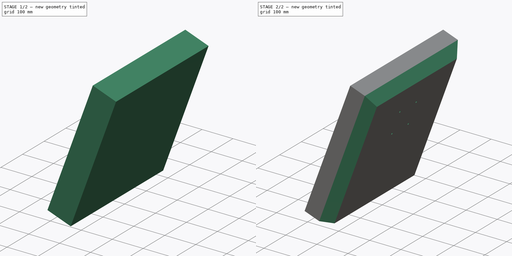
[diagram: build sequence overview — one tinted view per stage of 2, left to right]
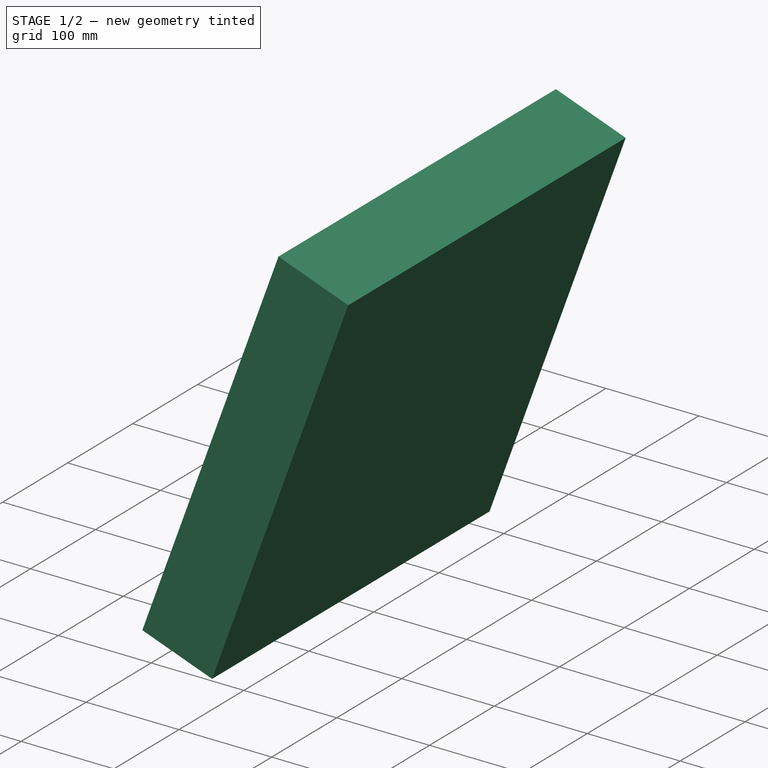
[diagram: stage 1 of 2 — iso view after this stage's code; geometry added in this stage tinted green]
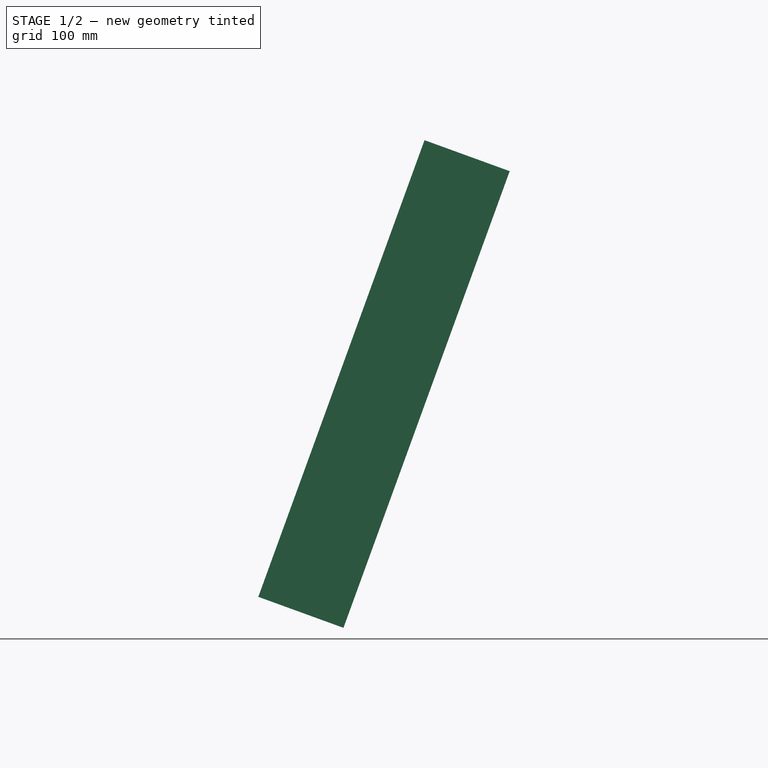
[diagram: stage 1 of 2 — front view after this stage's code; geometry added in this stage tinted green]
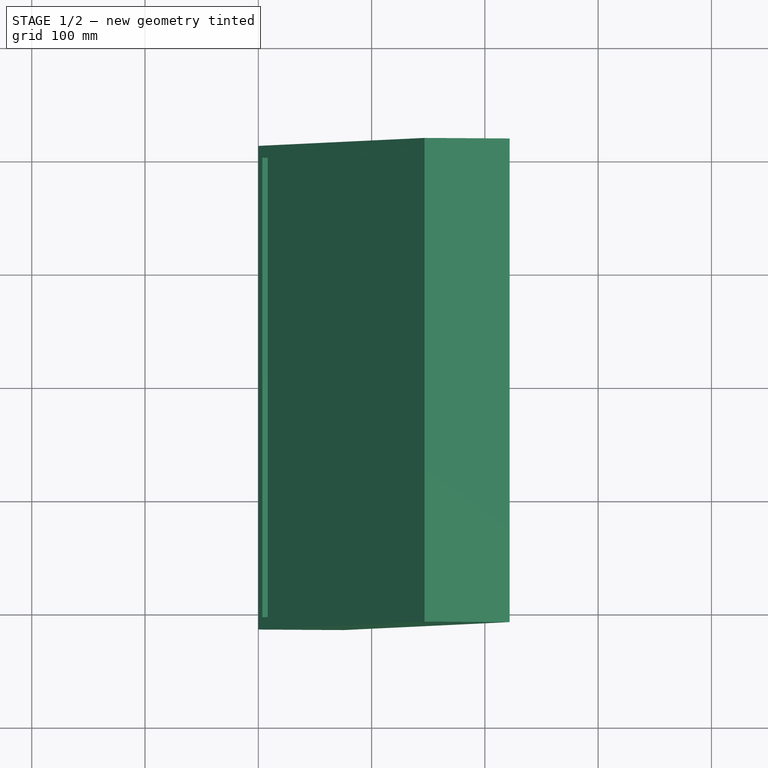
[diagram: stage 1 of 2 — top view after this stage's code; geometry added in this stage tinted green]
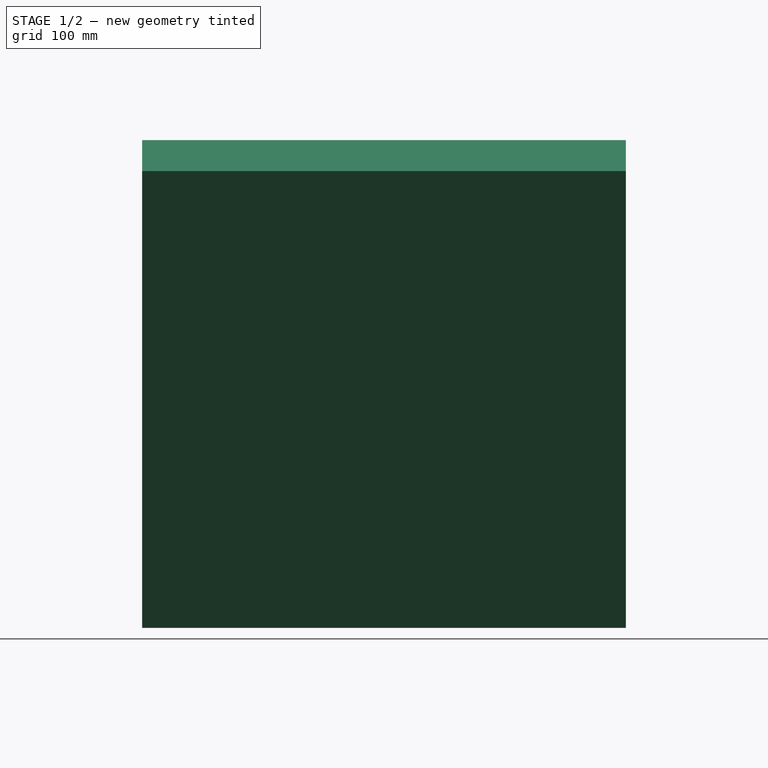
[diagram: stage 1 of 2 — right view after this stage's code; geometry added in this stage tinted green]
FCSTD DOCUMENT  (FreeCAD 0.19R14555 (Git shallow))
Label: 1100_Monitor_Acer AL1913W_427x196x429
License: All rights reserved
LicenseURL: http://en.wikipedia.org/wiki/All_rights_reserved
objects: Sketcher::SketchObject×3, PartDesign::Pad×1, PartDesign::Pocket×1, Spreadsheet::Sheet×1, PartDesign::Hole×1, PartDesign::Chamfer×1, PartDesign::Body×1, App::Part×1
note: 12 computed .brp shape members not serialized (recipe doc carries the construction recipe); baked Part::Feature solids carry a one-line shape summary decoded from their .brp

FEATURE [Sketcher::SketchObject] Sketch002
  FullyConstrained = true
  MapMode = 5
  Placement = pos=(0,0,0) rot=(0,0.707107,0.707107;3.14159rad)
  Support = -> [XZ_Plane001]
  expr: Constraints[7] = <<Monitor>>.D_monitor
  expr: Constraints[8] = <<Monitor>>.H_monitor
  sketch-geometry (4):
    g0: LineSegment StartX=-146.727 StartY=403.128 StartZ=0 EndX=0 EndY=0 EndZ=0
    g1: LineSegment StartX=0 StartY=0 StartZ=0 EndX=-75.1754 EndY=-27.3616 EndZ=0
    g2: LineSegment StartX=-75.1754 StartY=-27.3616 StartZ=0 EndX=-221.902 EndY=375.767 EndZ=0
    g3: LineSegment StartX=-221.902 StartY=375.767 StartZ=0 EndX=-146.727 EndY=403.128 EndZ=0
  constraints (11):
    c: Coincident(g2,g1)
    c: Coincident(g3,g2)
    c: Coincident(g3,g0)
    c: Perpendicular(g1,g0)
    c: Perpendicular(g2,g1)
    c: Perpendicular(g2,g3)
    c: Coincident(g1,g0)
    c: Distance(g1) = 80
    c: Distance(g2) = 429
    c: Coincident(g0,g-1)
    c: Angle(g-2,g0) = 0.349066
FEATURE [PartDesign::Pad] Pad002
  AllowMultiFace = false
  Direction = (1,1,1)
  Length = 213.5
  Length2 = 213.5
  Placement = pos=(0,0,0) rot=(1,0,0;1.5708rad)
  Profile = -> Sketch002
  Type = 4
  expr: Length = <<Monitor>>.W_monitor / 2
  expr: Length2 = <<Monitor>>.W_monitor / 2
FEATURE [Sketcher::SketchObject] Sketch
  ExternalGeometry = -> [Pad002]
  FullyConstrained = true
  MapMode = 5
  Placement = pos=(0,0,0) rot=(-0.573576,0,0.819152;3.14159rad)
  Support = -> [Pad002]
  sketch-geometry (8):
    g0: LineSegment StartX=-214.5 StartY=4.9e-15 StartZ=0 EndX=-10.6314 EndY=-202.918 EndZ=0
    g1: LineSegment StartX=-418.369 StartY=202.918 StartZ=0 EndX=-10.6314 EndY=202.918 EndZ=0
    g2: LineSegment StartX=-10.6314 StartY=202.918 StartZ=0 EndX=-10.6314 EndY=-202.918 EndZ=0
    g3: LineSegment StartX=-10.6314 StartY=-202.918 StartZ=0 EndX=-418.369 EndY=-202.918 EndZ=0
    g4: LineSegment StartX=-418.369 StartY=-202.918 StartZ=0 EndX=-418.369 EndY=202.918 EndZ=0
    g5: LineSegment StartX=-418.369 StartY=202.918 StartZ=0 EndX=-214.5 EndY=0 EndZ=0
    g6: LineSegment StartX=-418.369 StartY=202.918 StartZ=0 EndX=-429 EndY=213.5 EndZ=0
    g7: LineSegment StartX=-10.6314 StartY=-202.918 StartZ=0 EndX=0 EndY=-213.5 EndZ=0
  constraints (21):
    c: Coincident(g1,g2)
    c: Coincident(g2,g3)
    c: Coincident(g3,g4)
    c: Horizontal(g1)
    c: Horizontal(g3)
    c: Vertical(g2)
    c: Vertical(g4)
    c: Coincident(g2,g0)
    c: Coincident(g4,g1)
    c: Coincident(g5,g1)
    c: Coincident(g5,g0)
    c: Equal(g0,g5)
    c: Parallel(g5,g0)
    c: Coincident(g6,g1)
    c: Coincident(g6,g-6)
    c: Coincident(g7,g2)
    c: Coincident(g7,g-5)
    c: Parallel(g5,g6)
    c: Parallel(g7,g0)
    c: Equal(g6,g7)
    c: Distance(g6) = 15
FEATURE [PartDesign::Pocket] Pocket
  AllowMultiFace = false
  BaseFeature = -> Pad002
  Length = 5
  Length2 = 100
  Placement = pos=(0,0,0) rot=(1,0,0;1.5708rad)
  Profile = -> Sketch
  Type = 0
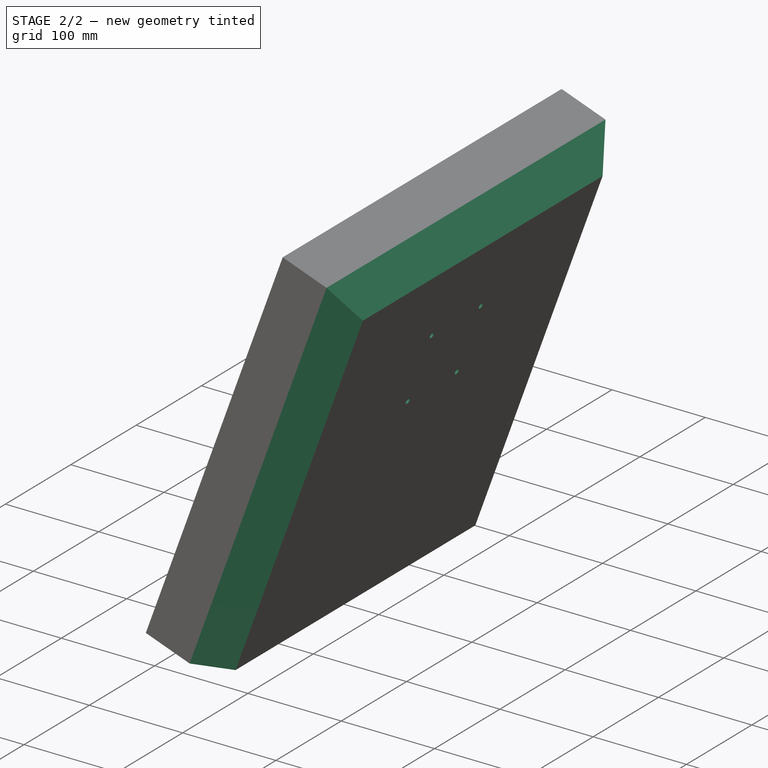
[diagram: stage 2 of 2 — iso view after this stage's code; geometry added in this stage tinted green]
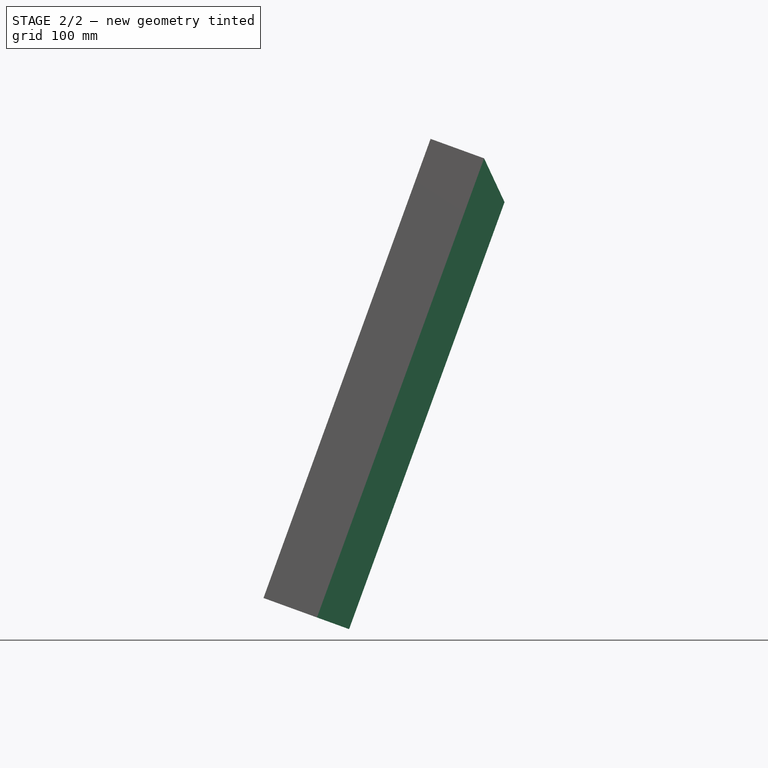
[diagram: stage 2 of 2 — front view after this stage's code; geometry added in this stage tinted green]
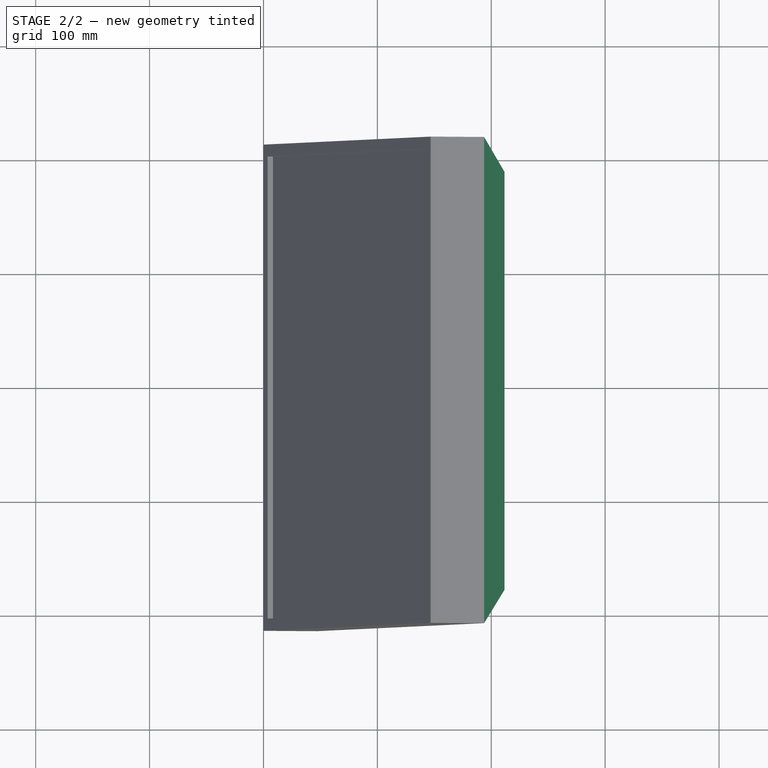
[diagram: stage 2 of 2 — top view after this stage's code; geometry added in this stage tinted green]
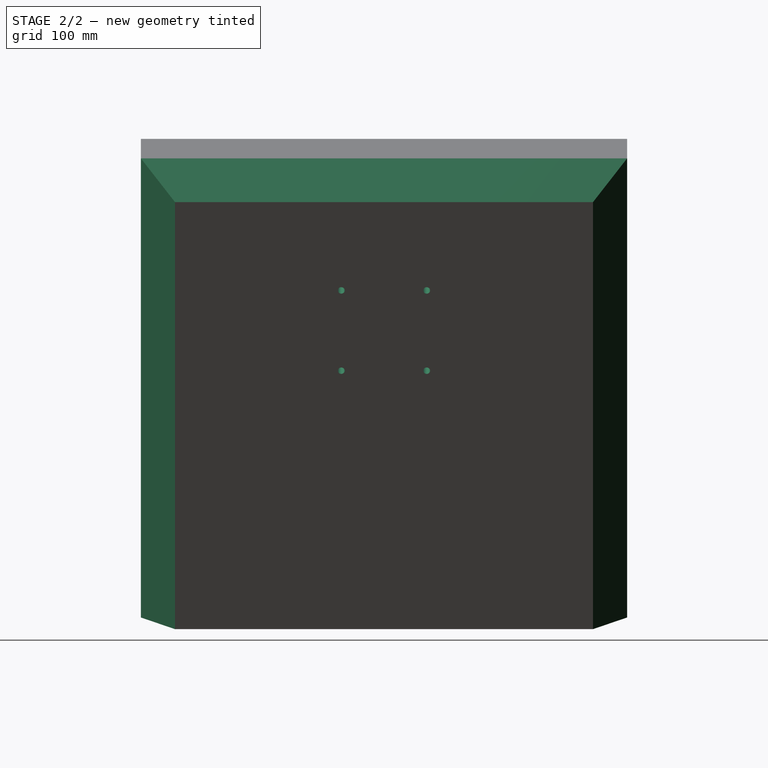
[diagram: stage 2 of 2 — right view after this stage's code; geometry added in this stage tinted green]
FEATURE [Spreadsheet::Sheet] Spreadsheet  label="Monitor"
  cells = B3=Monitor dimensions; E3=427 mm x 196mm x 429m; B4=Width; C4(W_monitor)=427; D4=W_monitor; B5=Height; C5(H_monitor)=429; D5=H_monitor; B6=Depth; C6(D_monitor)=80; D6=D_monitor; B8=Monitor Mounting; B9=Width; C9(W_mount)=75; D9=W_mount; B10=Height; C10(H_mount)=75; D10=H_mount; B11=HeightMounting; C11(H0_mount)=100; D11=H0_mount; B12=ScrewSize; C12(D_screw)=8; D12=D_screw
FEATURE [Sketcher::SketchObject] Sketch003
  ExternalGeometry = -> [Pocket]
  FullyConstrained = false
  MapMode = 5
  Placement = pos=(75.1754,2.8312e-12,-27.3616) rot=(0.819152,0,0.573576;3.14159rad)
  Support = -> [Pocket]
  sketch-geometry (12):
    g0: LineSegment StartX=429 StartY=213.5 StartZ=0 EndX=429 EndY=0 EndZ=0
    g1: LineSegment StartX=429 StartY=0 StartZ=0 EndX=429 EndY=-213.5 EndZ=0
    g2: LineSegment StartX=429 StartY=0 StartZ=0 EndX=279 EndY=-4.67669e-10 EndZ=0
    g3: LineSegment StartX=279 StartY=-4.67669e-10 StartZ=0 EndX=316.5 EndY=37.5 EndZ=0
    g4: LineSegment StartX=279 StartY=-4.67669e-10 StartZ=0 EndX=241.5 EndY=37.5 EndZ=0
    g5: LineSegment StartX=279 StartY=-4.67669e-10 StartZ=0 EndX=241.5 EndY=-37.5 EndZ=0
    g6: LineSegment StartX=279 StartY=-4.67669e-10 StartZ=0 EndX=316.5 EndY=-37.5 EndZ=0
    g7: Circle CenterX=241.5 CenterY=37.5 CenterZ=0 NormalX=0 NormalY=0 NormalZ=1 AngleXU=0 Radius=2
    g8: Circle CenterX=241.5 CenterY=-37.5 CenterZ=0 NormalX=0 NormalY=0 NormalZ=1 AngleXU=0 Radius=1.28365
    g9: Circle CenterX=316.5 CenterY=-37.5 CenterZ=0 NormalX=0 NormalY=0 NormalZ=1 AngleXU=0 Radius=2
    g10: Circle CenterX=316.5 CenterY=37.5 CenterZ=0 NormalX=0 NormalY=0 NormalZ=1 AngleXU=0 Radius=2
    g11: Circle CenterX=241.5 CenterY=-37.5 CenterZ=0 NormalX=0 NormalY=0 NormalZ=1 AngleXU=0 Radius=2
  constraints (29):
    c: Coincident(g-3,g1)
    c: Equal(g1,g0)
    c: Coincident(g0,g-3)
    c: Coincident(g1,g0)
    c: Parallel(g1,g0)
    c: Coincident(g5,g2)
    c: Coincident(g3,g4)
    c: Coincident(g6,g3)
    c: Coincident(g3,g2)
    c: Coincident(g2,g0)
    c: Coincident(g7,g4)
    c: Equal(g7,g10)
    c: Equal(g10,g9)
    c: Equal(g9,g11)
    c: Coincident(g9,g6)
    c: Coincident(g11,g8)
    c: Coincident(g8,g5)
    c: Coincident(g10,g3)
    c: Perpendicular(g1,g2)
    c: Equal(g6,g3)
    c: Equal(g5,g4)
    c: Equal(g4,g3)
    c: Angle(g2,g3) = 0.785398
    c: Angle(g3,g4) = 1.5708
    c: Parallel(g5,g3)
    c: Parallel(g6,g4)
    c: DistanceX(g7,g10) = 75
    c: DistanceX(g2,g2) = 150
    c: Diameter(g9) = 4
FEATURE [PartDesign::Hole] Hole
  AllowMultiFace = false
  BaseFeature = -> Pocket
  Depth = 25
  DepthType = 0
  Diameter = 6
  DrillForDepth = false
  DrillPoint = 1
  DrillPointAngle = 118
  HoleCutCountersinkAngle = 90
  HoleCutCustomValues = false
  HoleCutDepth = 0
  HoleCutDiameter = 0
  HoleCutType = 0
  ModelActualThread = false
  Placement = pos=(0,0,0) rot=(1,0,0;1.5708rad)
  Profile = -> Sketch003
  Tapered = false
  TaperedAngle = 90
  ThreadAngle = 0
  ThreadClass = 0
  ThreadCutOffInner = 0
  ThreadCutOffOuter = 0
  ThreadDirection = 0
  ThreadFit = 0
  ThreadPitch = 0
  ThreadSize = 0
  ThreadType = 0
  Threaded = false
FEATURE [PartDesign::Chamfer] Chamfer
  Angle = 45
  Base = -> Hole [Edge9,Edge13,Edge15]
  BaseFeature = -> Hole
  ChamferType = 0
  FlipDirection = false
  Placement = pos=(0,0,0) rot=(1,0,0;1.5708rad)
  Size = 30
  Size2 = 1
  SupportTransform = false
FEATURE [PartDesign::Body] Pad002Body
  Group = -> [Sketch002,Pad002,Sketch,Pocket,Sketch003,Hole,Chamfer]
  Origin = -> Origin001
  Tip = -> Chamfer
FEATURE [App::Part] Part
  Group = -> [Pad002Body]
  License = CC BY 3.0
  LicenseURL = http://creativecommons.org/licenses/by/3.0/
  Origin = -> Origin
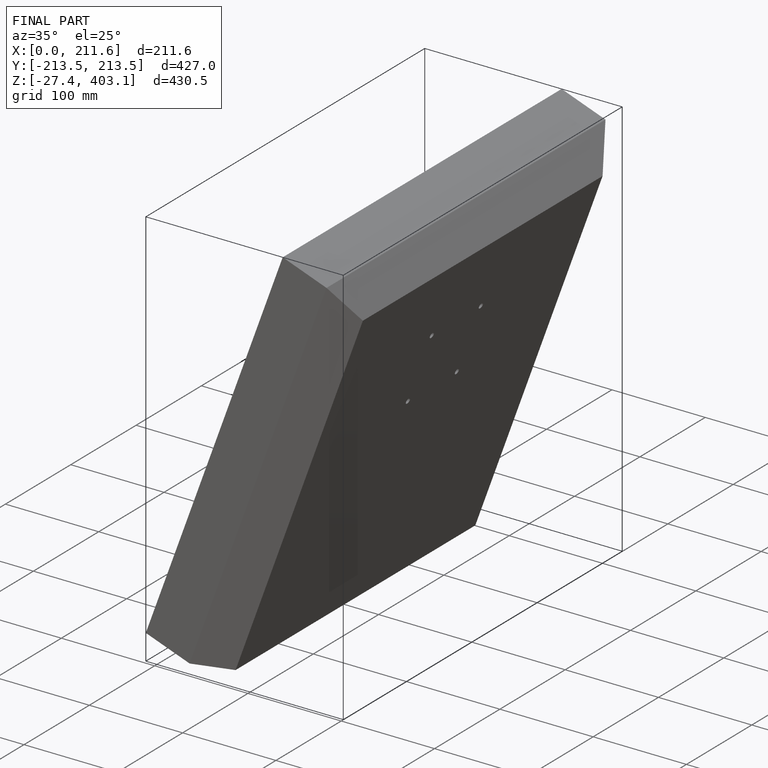
[diagram: finished part — iso view with bounding-box wireframe]
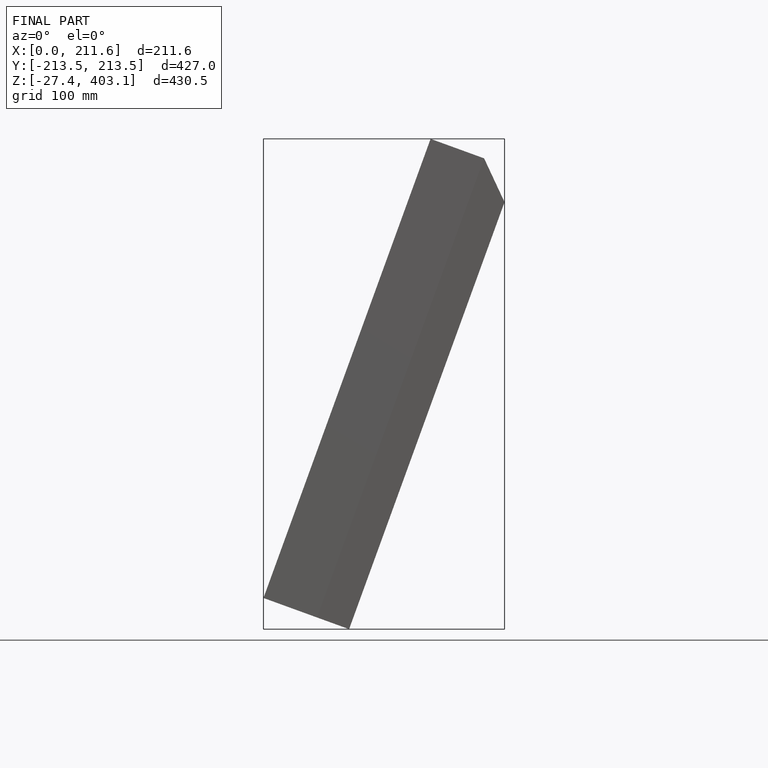
[diagram: finished part — front view with bounding-box wireframe]
